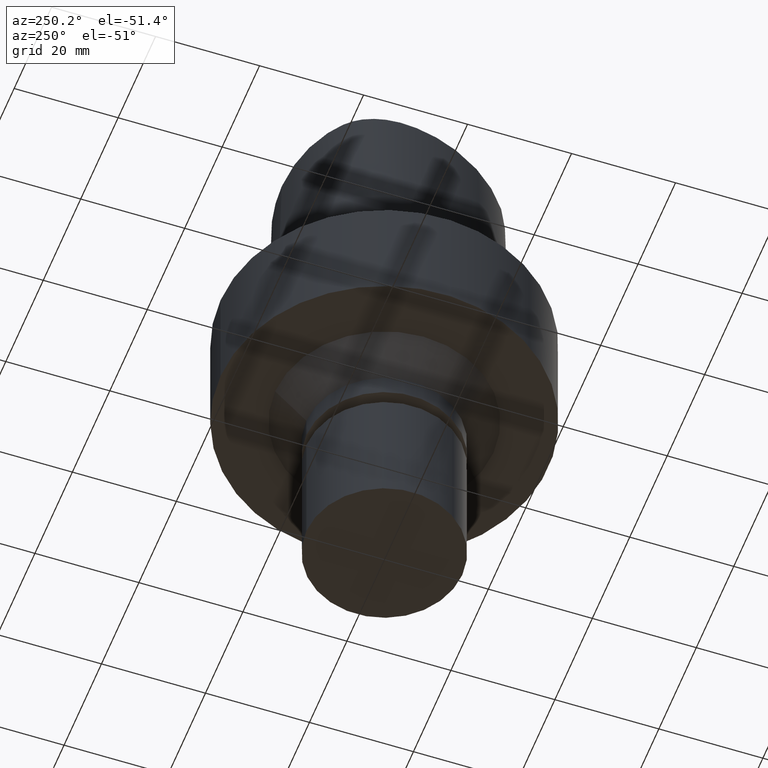
[diagram: clean part render]
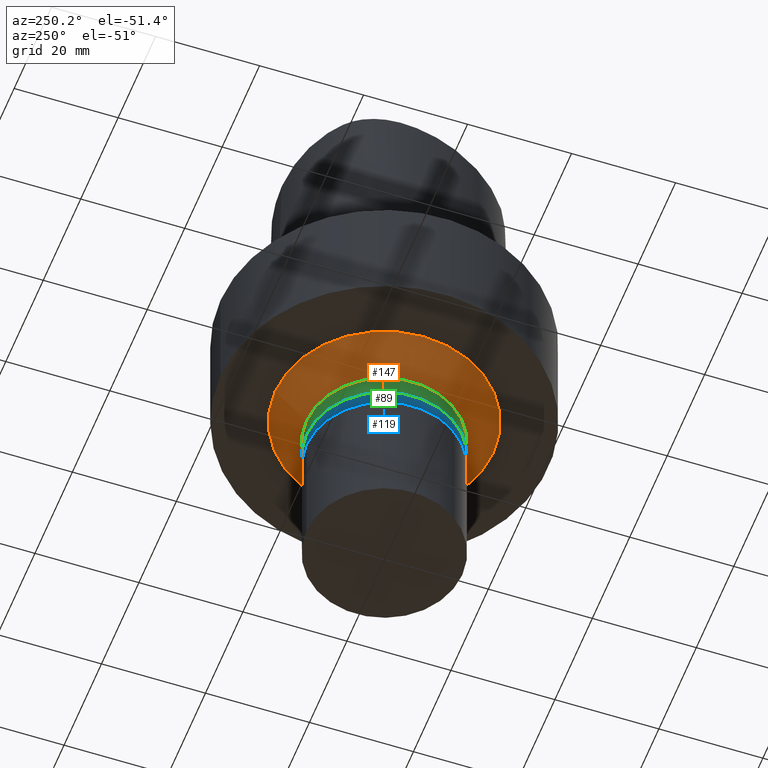
[diagram: same view with three faces highlighted in distinct colors, each labeled with its STEP entity id]
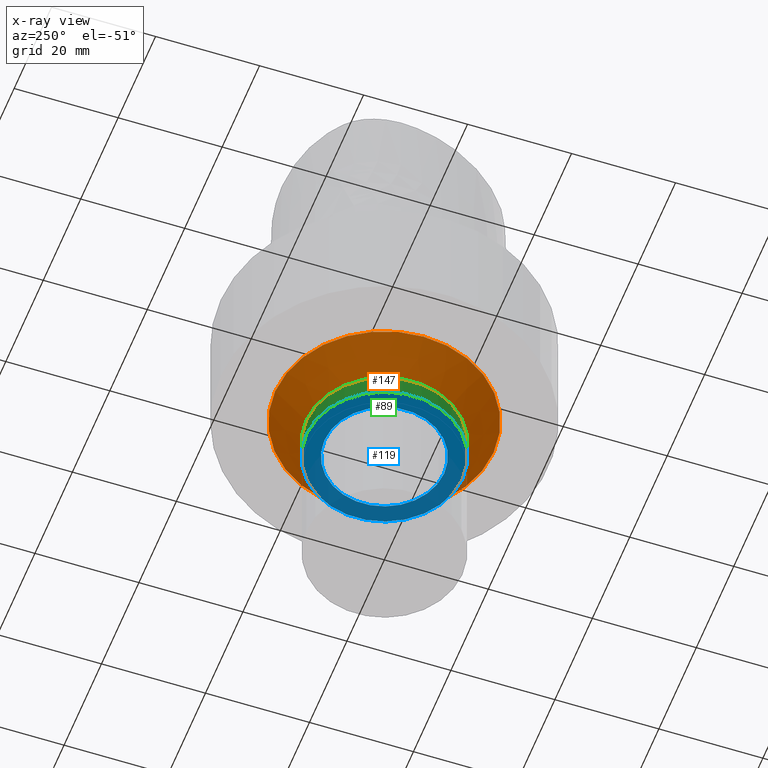
[diagram: x-ray of the same camera — body ghosted, the three highlighted faces saturated]
A machine part, auxiliary view with three faces highlighted in distinct colors.
The next image is the same camera in x-ray (body ghosted, the three faces saturated) — at least one of them is partly hidden behind the body in this view.
Their STEP definitions:

[orange] entity #147 — the highlighted conical surface has half-angle 45 deg.
#95=EDGE_CURVE('Unnamed[1]',#226,#226,#227,.T.);
#142=EDGE_CURVE('Unnamed[1]',#293,#293,#294,.T.);
#147=ADVANCED_FACE('Unnamed[1]',(#300,#301),#302,.T.);
#226=VERTEX_POINT('',#422);
#227=CIRCLE('',#423,20.9999999999995);
#293=VERTEX_POINT('',#593);
#294=CIRCLE('',#594,15.0);
#300=FACE_BOUND('',#602,.T.);
#301=FACE_BOUND('',#603,.T.);
#302=CONICAL_SURFACE('',#604,17.9999999999997,0.785398163397448);
#422=CARTESIAN_POINT('',(1.34711147906212E-015,20.9999999999995,-22.0000000000005));
#423=AXIS2_PLACEMENT_3D('',#766,#767,#768);
#593=CARTESIAN_POINT('',(1.71450551880629E-015,15.0,-28.0));
#594=AXIS2_PLACEMENT_3D('',#839,#840,#841);
#602=EDGE_LOOP('',(#846));
#603=EDGE_LOOP('',(#847));
#604=AXIS2_PLACEMENT_3D('',#848,#849,#850);
#766=CARTESIAN_POINT('',(1.34711147906212E-015,2.69422295812424E-015,-22.0000000000005));
#767=DIRECTION('',(6.12323399573677E-017,1.22464679914735E-016,-1.0));
#768=DIRECTION('',(-1.23259516440783E-032,1.0,1.22464679914735E-016));
#839=CARTESIAN_POINT('',(1.71450551880629E-015,3.42901103761259E-015,-28.0));
#840=DIRECTION('',(6.12323399573677E-017,1.22464679914735E-016,-1.0));
#841=DIRECTION('',(-1.23259516440783E-032,1.0,1.22464679914735E-016));
#846=ORIENTED_EDGE('',*,*,#142,.F.);
#847=ORIENTED_EDGE('',*,*,#95,.T.);
#848=CARTESIAN_POINT('',(1.53080849893421E-015,3.06161699786841E-015,-25.0000000000003));
#849=DIRECTION('',(-6.12323399573677E-017,-1.22464679914735E-016,1.0));
#850=DIRECTION('',(-1.23259516440783E-032,1.0,1.22464679914735E-016));

[blue] entity #119 — the highlighted planar face has unit normal (0, 0, -1).
#107=EDGE_CURVE('Unnamed[1]',#243,#243,#244,.T.);
#119=ADVANCED_FACE('Unnamed[1]',(#261,#262),#263,.T.);
#164=EDGE_CURVE('Unnamed[1]',#325,#325,#326,.T.);
#243=VERTEX_POINT('',#463);
#244=CIRCLE('',#464,14.9999999999997);
#261=FACE_BOUND('',#552,.T.);
#262=FACE_OUTER_BOUND('',#553,.T.);
#263=PLANE('',#554);
#325=VERTEX_POINT('',#650);
#326=CIRCLE('',#651,11.4999999999907);
#463=CARTESIAN_POINT('',(1.96555811963742E-015,14.9999999999997,-32.1000001144153));
#464=AXIS2_PLACEMENT_3D('',#779,#780,#781);
#552=EDGE_LOOP('',(#800));
#553=EDGE_LOOP('',(#801));
#554=AXIS2_PLACEMENT_3D('',#802,#803,#804);
#650=CARTESIAN_POINT('',(1.96555811963742E-015,11.4999999999907,-32.1000001144153));
#651=AXIS2_PLACEMENT_3D('',#873,#874,#875);
#779=CARTESIAN_POINT('',(1.96555811963742E-015,3.93111623927483E-015,-32.1000001144153));
#780=DIRECTION('',(6.12323399573676E-017,1.22464679914735E-016,-1.0));
#781=DIRECTION('',(-1.23259516440783E-032,1.0,1.22464679914735E-016));
#800=ORIENTED_EDGE('',*,*,#164,.F.);
#801=ORIENTED_EDGE('',*,*,#107,.T.);
#802=CARTESIAN_POINT('',(1.96555811963742E-015,13.2499999999952,-32.1000001144153));
#803=DIRECTION('',(6.12323399573677E-017,1.22464679914735E-016,-1.0));
#804=DIRECTION('',(-1.23259516440783E-032,1.0,1.22464679914735E-016));
#873=CARTESIAN_POINT('',(1.96555811963742E-015,3.93111623927483E-015,-32.1000001144153));
#874=DIRECTION('',(6.12323399573677E-017,1.22464679914735E-016,-1.0));
#875=DIRECTION('',(-1.23259516440783E-032,1.0,1.22464679914735E-016));

[green] entity #89 — the highlighted cylindrical surface (bore or boss wall) has radius 15 mm, axis along (0, 0, -1).
#89=ADVANCED_FACE('Unnamed[1]',(#214,#215),#216,.T.);
#107=EDGE_CURVE('Unnamed[1]',#243,#243,#244,.T.);
#142=EDGE_CURVE('Unnamed[1]',#293,#293,#294,.T.);
#214=FACE_BOUND('',#376,.T.);
#215=FACE_BOUND('',#377,.T.);
#216=CYLINDRICAL_SURFACE('',#378,14.9999999999998);
#243=VERTEX_POINT('',#463);
#244=CIRCLE('',#464,14.9999999999997);
#293=VERTEX_POINT('',#593);
#294=CIRCLE('',#594,15.0);
#376=EDGE_LOOP('',(#761));
#377=EDGE_LOOP('',(#762));
#378=AXIS2_PLACEMENT_3D('',#763,#764,#765);
#463=CARTESIAN_POINT('',(1.96555811963742E-015,14.9999999999997,-32.1000001144153));
#464=AXIS2_PLACEMENT_3D('',#779,#780,#781);
#593=CARTESIAN_POINT('',(1.71450551880629E-015,15.0,-28.0));
#594=AXIS2_PLACEMENT_3D('',#839,#840,#841);
#761=ORIENTED_EDGE('',*,*,#107,.F.);
#762=ORIENTED_EDGE('',*,*,#142,.T.);
#763=CARTESIAN_POINT('',(1.84003181922186E-015,3.68006363844371E-015,-30.0500000572076));
#764=DIRECTION('',(6.12323399573677E-017,1.22464679914735E-016,-1.0));
#765=DIRECTION('',(-1.23259516440783E-032,1.0,1.22464679914735E-016));
#779=CARTESIAN_POINT('',(1.96555811963742E-015,3.93111623927483E-015,-32.1000001144153));
#780=DIRECTION('',(6.12323399573676E-017,1.22464679914735E-016,-1.0));
#781=DIRECTION('',(-1.23259516440783E-032,1.0,1.22464679914735E-016));
#839=CARTESIAN_POINT('',(1.71450551880629E-015,3.42901103761259E-015,-28.0));
#840=DIRECTION('',(6.12323399573677E-017,1.22464679914735E-016,-1.0));
#841=DIRECTION('',(-1.23259516440783E-032,1.0,1.22464679914735E-016));